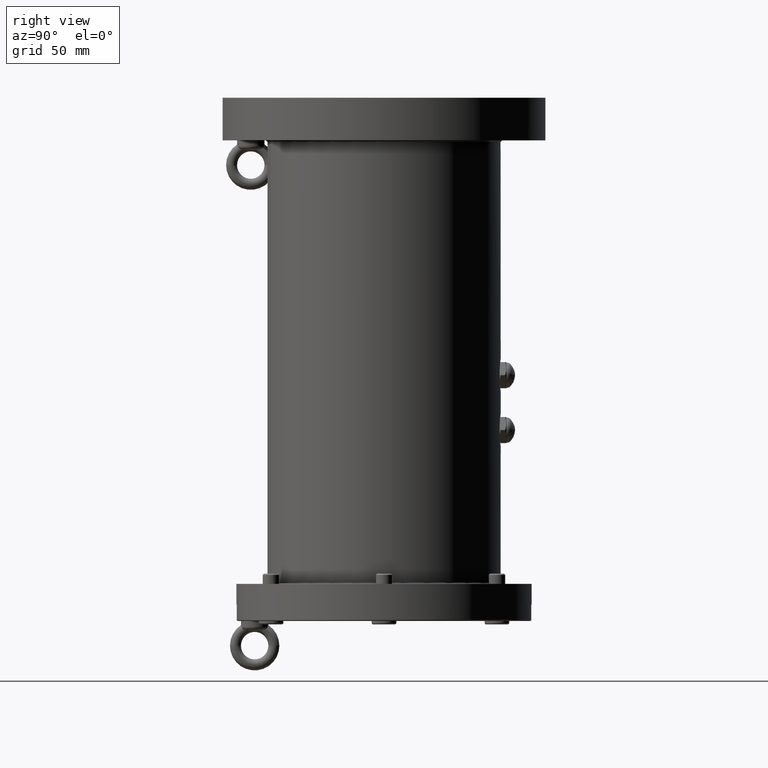
[diagram: clean part render]
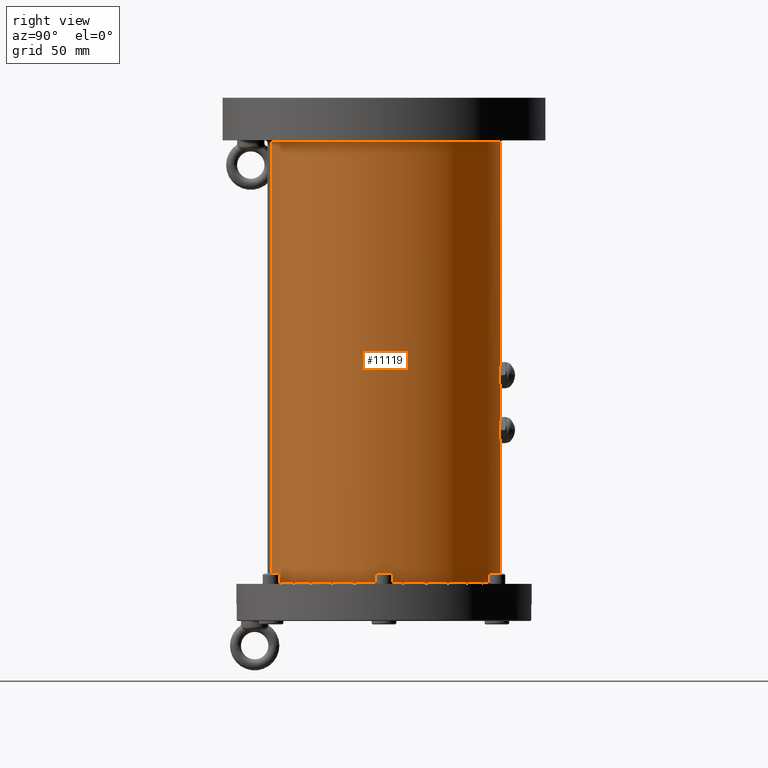
[diagram: same view with one face highlighted and labeled with its STEP entity id]
A machine part, right view. The second image highlights one B-rep face of the part: STEP entity #11119.
In plain terms, the highlighted cylindrical surface (partial cylindrical patch) has radius 85 mm, axis along (0, 0, -1).
Its self-contained STEP definition (entity closure, byte-faithful):
#14 = CARTESIAN_POINT ( 'NONE',  ( 9.044206544747794400, 84.51933773382572200, -228.0735759516371100 ) ) ;
#154 = CARTESIAN_POINT ( 'NONE',  ( 12.00000000000032000, 84.14867794564564500, -235.6081599164047000 ) ) ;
#301 = CARTESIAN_POINT ( 'NONE',  ( 9.539889462562088700, 84.46408613017567300, -228.6787327392241300 ) ) ;
#600 = CARTESIAN_POINT ( 'NONE',  ( -2.716766988785695800, 84.95744005834585300, -207.6949688949786200 ) ) ;
#750 = CARTESIAN_POINT ( 'NONE',  ( 9.043574513783143600, 84.51936035444008200, -203.9262503338350400 ) ) ;
#902 = CARTESIAN_POINT ( 'NONE',  ( -9.032457623247591300, 84.52055063493057200, -203.9388463214366100 ) ) ;
#1034 = CARTESIAN_POINT ( 'NONE',  ( 9.539328796728090900, 84.46416691641414300, -203.3226928016652000 ) ) ;
#1198 = CARTESIAN_POINT ( 'NONE',  ( 7.312926427400684700, 84.68538947666878900, -205.5224708189947800 ) ) ;
#1351 = CARTESIAN_POINT ( 'NONE',  ( -11.99999999999967800, 84.14867794564580100, -236.0000000000000000 ) ) ;
#1372 = CIRCLE ( 'NONE', #26003, 85.00000000000000000 ) ;
#1387 = CARTESIAN_POINT ( 'NONE',  ( 10.77006372919801100, 84.31512610298203500, -241.3065942958711800 ) ) ;
#1832 = CARTESIAN_POINT ( 'NONE',  ( 10.19592800352819000, 84.38656068261619200, -242.3402056817414200 ) ) ;
#1978 = CARTESIAN_POINT ( 'NONE',  ( -10.18859423492148900, 84.38744870150067400, -242.3520347736085500 ) ) ;
#2130 = CARTESIAN_POINT ( 'NONE',  ( -6.983962936282843300, 84.71323001081987100, -245.7661664604318900 ) ) ;
#2290 = VERTEX_POINT ( 'NONE', #1351 ) ;
#2415 = CARTESIAN_POINT ( 'NONE',  ( -9.529429831560792200, 84.46529328910463600, -243.3357453664512500 ) ) ;
#2476 = CARTESIAN_POINT ( 'NONE',  ( 10.19148729547827200, 84.38709273874185600, -189.6528590671458700 ) ) ;
#2614 = CARTESIAN_POINT ( 'NONE',  ( -5.310945533964949800, 84.83462816274818900, -185.2320931575498800 ) ) ;
#2760 = CARTESIAN_POINT ( 'NONE',  ( 0.3874350015440145600, 85.00002041852370400, -183.9998553687809400 ) ) ;
#2900 = CARTESIAN_POINT ( 'NONE',  ( -11.92198641215700600, 84.15990747472983500, -194.4255957995898400 ) ) ;
#3002 = EDGE_CURVE ( 'NONE', #42811, #40258, #11032, .T. ) ;
#3035 = CARTESIAN_POINT ( 'NONE',  ( -0.7882321558434973700, 84.99995881286028500, -184.0002917422595200 ) ) ;
#3232 = CARTESIAN_POINT ( 'NONE',  ( -11.99999999999967800, 84.14867794564580100, -236.0000000000000000 ) ) ;
#3245 = DIRECTION ( 'NONE',  ( -0.0000000000000000000, -0.0000000000000000000, -1.000000000000000000 ) ) ;
#3344 = CARTESIAN_POINT ( 'NONE',  ( 11.90309463227067300, 84.16244934853570200, -194.4274107133734000 ) ) ;
#3444 = CARTESIAN_POINT ( 'NONE',  ( 10.19148729547827200, 84.38709273874184200, -229.6528590671458400 ) ) ;
#3590 = CARTESIAN_POINT ( 'NONE',  ( 11.98085656346280100, 84.15141483169109900, -235.2152867434954300 ) ) ;
#3679 = CARTESIAN_POINT ( 'NONE',  ( -9.760501540203671700, 84.43802866477463500, -229.0081289687887800 ) ) ;
#3684 = CARTESIAN_POINT ( 'NONE',  ( -1.567579392149860200, 84.98907864495055300, -224.0766274336976100 ) ) ;
#3825 = CARTESIAN_POINT ( 'NONE',  ( -8.760010812684015500, 84.54785277514982100, -227.7893357789078300 ) ) ;
#4037 = CARTESIAN_POINT ( 'NONE',  ( -6.983962936282839700, 84.71323001081985600, -205.7661664604318000 ) ) ;
#4322 = CARTESIAN_POINT ( 'NONE',  ( 11.59640882552746900, 84.20532383403774200, -199.1108686624815200 ) ) ;
#4477 = CARTESIAN_POINT ( 'NONE',  ( 12.00000000000032300, 84.14867794564565900, -196.0000000000000000 ) ) ;
#4635 = CARTESIAN_POINT ( 'NONE',  ( 10.93719857709753600, 84.29353733322805900, -200.9528186831044500 ) ) ;
#4817 = CARTESIAN_POINT ( 'NONE',  ( 10.40007235699772000, 84.36156267792792100, -241.9993925293458400 ) ) ;
#5062 = CARTESIAN_POINT ( 'NONE',  ( -11.92201397404362600, 84.15990792060125600, -197.5782156996784500 ) ) ;
#5105 = CARTESIAN_POINT ( 'NONE',  ( 12.00000000000032300, 84.14867794564565900, -236.0000000000000000 ) ) ;
#5388 = DIRECTION ( 'NONE',  ( 0.0000000000000000000, 0.0000000000000000000, -1.000000000000000000 ) ) ;
#5397 = CARTESIAN_POINT ( 'NONE',  ( -0.7850806761552080500, 85.00007519297962200, -248.0005326170581300 ) ) ;
#5822 = CARTESIAN_POINT ( 'NONE',  ( -5.316192398897417300, 84.83670743509854600, -246.7868324921111600 ) ) ;
#5886 = CARTESIAN_POINT ( 'NONE',  ( 10.76514057232043000, 84.31575693812642700, -190.6833330459974100 ) ) ;
#6089 = EDGE_CURVE ( 'NONE', #39064, #39777, #35066, .T. ) ;
#6317 = CARTESIAN_POINT ( 'NONE',  ( -9.760501540203680500, 84.43802866477466300, -189.0081289687889000 ) ) ;
#6653 = CARTESIAN_POINT ( 'NONE',  ( -6.343323484628060200, 84.76361506703376800, -225.8059884971991400 ) ) ;
#7153 = CARTESIAN_POINT ( 'NONE',  ( 10.93531165406888000, 84.29378384862920400, -231.0428372348776200 ) ) ;
#7263 = CARTESIAN_POINT ( 'NONE',  ( 12.00000000000032300, 84.14867794564565900, -236.0000000000000000 ) ) ;
#7438 = CARTESIAN_POINT ( 'NONE',  ( -7.302476822687596700, 84.68628955460567900, -205.5304468885489100 ) ) ;
#7590 = CARTESIAN_POINT ( 'NONE',  ( 0.8012792761250384600, 84.99992403527144800, -207.9994619163863100 ) ) ;
#7740 = CARTESIAN_POINT ( 'NONE',  ( -10.18859423492148900, 84.38744870150064500, -202.3520347736084700 ) ) ;
#7808 = FACE_OUTER_BOUND ( 'NONE', #29012, .T. ) ;
#9324 = CARTESIAN_POINT ( 'NONE',  ( -3.867200613673145200, 84.91281579986430500, -184.6334211795388900 ) ) ;
#9472 = CARTESIAN_POINT ( 'NONE',  ( -8.760010812684019000, 84.54785277514983500, -187.7893357789078300 ) ) ;
#9625 = CARTESIAN_POINT ( 'NONE',  ( -11.59768029592348000, 84.20514919463163000, -192.8936821978159300 ) ) ;
#9773 = CARTESIAN_POINT ( 'NONE',  ( 6.008376185134151700, 84.78809109822999800, -185.6050811984187000 ) ) ;
#9909 = CARTESIAN_POINT ( 'NONE',  ( 1.568751044270822300, 84.98643661538770300, -224.0963920674824100 ) ) ;
#10017 = CARTESIAN_POINT ( 'NONE',  ( 10.39325043529473000, 84.36240551916640100, -229.9887152429077400 ) ) ;
#10098 = CARTESIAN_POINT ( 'NONE',  ( -5.310945533964952500, 84.83462816274817400, -225.2320931575499100 ) ) ;
#10460 = CARTESIAN_POINT ( 'NONE',  ( 3.863975070135972100, 84.91525109146560600, -224.6118936956986800 ) ) ;
#10761 = CARTESIAN_POINT ( 'NONE',  ( 6.996275777822544000, 84.71221101124646700, -205.7573257656301300 ) ) ;
#11032 = B_SPLINE_CURVE_WITH_KNOTS ( 'NONE', 3,
 ( #29990, #16084, #2900, #22980, #9625, #12656, #43752, #12923, #44051, #6317, #19688, #43605, #9472, #36838, #40295, #40445, #36987, #2614, #19981, #23273, #9324, #27019, #36558, #33542, #3035, #2760, #30412, #13207, #33121, #30277, #43903, #40008, #23417, #9773, #19549, #37134, #16681, #40579, #20136, #2476, #26424, #5886, #29859, #33265, #36706, #34152, #3344, #37736, #24143, #17421 ),
 .UNSPECIFIED., .F., .F.,
 ( 4, 2, 2, 2, 2, 2, 2, 2, 2, 2, 2, 2, 2, 2, 2, 2, 2, 2, 2, 2, 2, 2, 2, 2, 4 ),
 ( 0.0000000000000000000, 0.002347772483026787100, 0.003521658724540181800, 0.004695544966053576800, 0.007043317449080367800, 0.008217203690593798500, 0.009391089932107230000, 0.01173886241513409600, 0.01291274865664752800, 0.01408663489816096300, 0.01526052113967439400, 0.01643440738118782900, 0.01878217986421469900, 0.01995606610572812900, 0.02112995234724155900, 0.02347772483026842500, 0.02465161107178184500, 0.02582549731329526100, 0.02817326979632209900, 0.03052104227934893500, 0.03169492852086239200, 0.03286881476237583900, 0.03521658724540267100, 0.03639047348691608300, 0.03756435972842949600 ),
 .UNSPECIFIED. ) ;
#11049 = CARTESIAN_POINT ( 'NONE',  ( -5.316192398897420000, 84.83670743509853200, -206.7868324921111000 ) ) ;
#11104 = B_SPLINE_CURVE_WITH_KNOTS ( 'NONE', 3,
 ( #3232, #14002, #40923, #44228, #37915, #13693, #41067, #20601, #20742, #3679, #41369, #20449, #3825, #23880, #27803, #6653, #30593, #10098, #24778, #42553, #16217, #35924, #12746, #3684, #28103, #42414, #16079, #9909, #41276, #27861, #10460, #17369, #23790, #24090, #27711, #30502, #40978, #14, #301, #3444, #10017, #40835, #7153, #13905, #17525, #13602, #37378, #3590, #154, #27556 ),
 .UNSPECIFIED., .F., .F.,
 ( 4, 2, 2, 2, 2, 2, 2, 2, 2, 2, 2, 2, 2, 2, 2, 2, 2, 2, 2, 2, 2, 2, 2, 2, 4 ),
 ( 0.0000000000000000000, 0.002347772483026784500, 0.003521658724540177400, 0.004695544966053570800, 0.007043317449080356600, 0.008217203690593788100, 0.009391089932107217800, 0.01173886241513408400, 0.01291274865664751800, 0.01408663489816095100, 0.01526052113967438700, 0.01643440738118781900, 0.01878217986421468900, 0.01995606610572812200, 0.02112995234724155500, 0.02347772483026842500, 0.02465161107178184100, 0.02582549731329526100, 0.02817326979632209200, 0.03052104227934893100, 0.03169492852086238500, 0.03286881476237583200, 0.03521658724540265700, 0.03639047348691607000, 0.03756435972842947500 ),
 .UNSPECIFIED. ) ;
#11119 = ADVANCED_FACE ( 'NONE', ( #26068, #41009, #7808 ), #13705, .T. ) ;
#11196 = CARTESIAN_POINT ( 'NONE',  ( -10.39249425398408500, 84.36249690369291400, -202.0124691118503800 ) ) ;
#11348 = CARTESIAN_POINT ( 'NONE',  ( 11.69303107457282700, 84.19191806899442600, -198.7256521143109200 ) ) ;
#11987 = CARTESIAN_POINT ( 'NONE',  ( 11.69303107457283100, 84.19191806899441100, -238.7256521143109500 ) ) ;
#12330 = EDGE_CURVE ( 'NONE', #41571, #39777, #44158, .T. ) ;
#12451 = CARTESIAN_POINT ( 'NONE',  ( -1.565247284193284300, 84.98905681024153600, -247.9231909421439800 ) ) ;
#12590 = CARTESIAN_POINT ( 'NONE',  ( -10.39249425398408800, 84.36249690369292900, -242.0124691118504400 ) ) ;
#12656 = CARTESIAN_POINT ( 'NONE',  ( -11.36880756774511500, 84.23635529641703100, -192.1392211896822500 ) ) ;
#12729 = CARTESIAN_POINT ( 'NONE',  ( -10.76279905243599600, 84.31605408937004100, -241.3212665970546900 ) ) ;
#12746 = CARTESIAN_POINT ( 'NONE',  ( -2.729801436212321100, 84.95703845259627900, -224.3079422792547700 ) ) ;
#12923 = CARTESIAN_POINT ( 'NONE',  ( -10.78245963808059200, 84.31388364077544400, -190.6748617810330300 ) ) ;
#13207 = CARTESIAN_POINT ( 'NONE',  ( 1.568751044270831500, 84.98643661538771700, -184.0963920674823800 ) ) ;
#13546 = ORIENTED_EDGE ( 'NONE', *, *, #6089, .F. ) ;
#13602 = CARTESIAN_POINT ( 'NONE',  ( 11.84456904261687900, 84.17073249480111500, -234.0352359228374200 ) ) ;
#13693 = CARTESIAN_POINT ( 'NONE',  ( -11.36880756774512100, 84.23635529641707400, -232.1392211896822700 ) ) ;
#13705 = CYLINDRICAL_SURFACE ( 'NONE', #39806, 85.00000000000000000 ) ;
#13905 = CARTESIAN_POINT ( 'NONE',  ( 11.38675581780182000, 84.23439878048570500, -232.1322090863315000 ) ) ;
#14002 = CARTESIAN_POINT ( 'NONE',  ( -11.99999999999967800, 84.14867794564581500, -235.2060630651847900 ) ) ;
#14199 = CARTESIAN_POINT ( 'NONE',  ( -1.565247284193293200, 84.98905681024153600, -207.9231909421440000 ) ) ;
#14655 = CARTESIAN_POINT ( 'NONE',  ( 4.241705715577453800, 84.89487792328137100, -207.2322170925742700 ) ) ;
#14796 = CARTESIAN_POINT ( 'NONE',  ( 10.19592800352818800, 84.38656068261616400, -202.3402056817414200 ) ) ;
#14992 = CARTESIAN_POINT ( 'NONE',  ( 11.92401084053163100, 84.15962298432469900, -237.5628775100936100 ) ) ;
#15069 = DIRECTION ( 'NONE',  ( 0.0000000000000000000, 0.0000000000000000000, 1.000000000000000000 ) ) ;
#15241 = CARTESIAN_POINT ( 'NONE',  ( -10.93026980056637900, 84.29443687098752500, -200.9680788320513900 ) ) ;
#15265 = LINE ( 'NONE', #19938, #40920 ) ;
#15569 = CARTESIAN_POINT ( 'NONE',  ( -9.032457623247568200, 84.52055063493055800, -243.9388463214365900 ) ) ;
#15732 = CARTESIAN_POINT ( 'NONE',  ( -10.93026980056637500, 84.29443687098751100, -240.9680788320513600 ) ) ;
#15873 = CARTESIAN_POINT ( 'NONE',  ( -7.912574702108162100, 84.63146558967272900, -245.0303237608016800 ) ) ;
#16015 = CARTESIAN_POINT ( 'NONE',  ( -4.226973463295514900, 84.89561179974644700, -247.2377537590629700 ) ) ;
#16079 = CARTESIAN_POINT ( 'NONE',  ( 0.7804395639672502300, 84.99733114932026000, -224.0188574945044900 ) ) ;
#16084 = CARTESIAN_POINT ( 'NONE',  ( -11.99999999999967700, 84.14867794564580100, -195.2060630651847900 ) ) ;
#16217 = CARTESIAN_POINT ( 'NONE',  ( -3.867200613673166000, 84.91281579986433300, -224.6334211795388900 ) ) ;
#16681 = CARTESIAN_POINT ( 'NONE',  ( 7.925326605833289400, 84.63158583637333300, -186.9548317644504900 ) ) ;
#16773 = CARTESIAN_POINT ( 'NONE',  ( 21.99961883371404500, -82.10369523457086400, -351.0000000000000000 ) ) ;
#17369 = CARTESIAN_POINT ( 'NONE',  ( 4.954573678465531600, 84.85625930054884200, -225.0635007063579600 ) ) ;
#17421 = CARTESIAN_POINT ( 'NONE',  ( 12.00000000000032300, 84.14867794564565900, -196.0000000000000000 ) ) ;
#17525 = CARTESIAN_POINT ( 'NONE',  ( 11.61395806218078300, 84.20296952125058000, -232.8803152616346800 ) ) ;
#17670 = CARTESIAN_POINT ( 'NONE',  ( -4.226973463295518500, 84.89561179974646200, -207.2377537590630000 ) ) ;
#18129 = CARTESIAN_POINT ( 'NONE',  ( -7.912574702108165600, 84.63146558967272900, -205.0303237608015600 ) ) ;
#18425 = CARTESIAN_POINT ( 'NONE',  ( -11.36275192046322900, 84.23717274169563000, -199.8784431444513500 ) ) ;
#18461 = CARTESIAN_POINT ( 'NONE',  ( 10.93719857709754900, 84.29353733322808800, -240.9528186831044300 ) ) ;
#18604 = CARTESIAN_POINT ( 'NONE',  ( 0.0000000000000000000, 0.0000000000000000000, -18.00000000000000000 ) ) ;
#18610 = CARTESIAN_POINT ( 'NONE',  ( 7.312926427400657100, 84.68538947666877400, -245.5224708189947200 ) ) ;
#19047 = CARTESIAN_POINT ( 'NONE',  ( -11.99999999999968200, 84.14867794564582900, -236.7937437325308800 ) ) ;
#19188 = CARTESIAN_POINT ( 'NONE',  ( 3.113509701430350300, 84.94379456835221700, -247.5957368511952000 ) ) ;
#19513 = ORIENTED_EDGE ( 'NONE', *, *, #34517, .F. ) ;
#19549 = CARTESIAN_POINT ( 'NONE',  ( 6.344150428599635700, 84.76354102493668600, -185.8066507698287400 ) ) ;
#19628 = CARTESIAN_POINT ( 'NONE',  ( -11.92201397404362400, 84.15990792060124200, -237.5782156996784200 ) ) ;
#19688 = CARTESIAN_POINT ( 'NONE',  ( -9.524848569316903400, 84.46502708739349400, -188.6902002795511100 ) ) ;
#19711 = ORIENTED_EDGE ( 'NONE', *, *, #34663, .F. ) ;
#19938 = CARTESIAN_POINT ( 'NONE',  ( 21.99961883371404500, -82.10369523457086400, -18.00000000000000000 ) ) ;
#19981 = CARTESIAN_POINT ( 'NONE',  ( -4.957416244701631700, 84.85608216997584900, -185.0648868475599900 ) ) ;
#20014 = EDGE_CURVE ( 'NONE', #27588, #41571, #15265, .T. ) ;
#20136 = CARTESIAN_POINT ( 'NONE',  ( 9.539889462562095800, 84.46408613017568700, -188.6787327392241600 ) ) ;
#20431 = CARTESIAN_POINT ( 'NONE',  ( -21.99961883371403500, 82.10369523457086400, -18.00000000000000000 ) ) ;
#20449 = CARTESIAN_POINT ( 'NONE',  ( -9.023711074485580900, 84.52003419063873900, -228.0798642268141000 ) ) ;
#20601 = CARTESIAN_POINT ( 'NONE',  ( -10.78245963808059700, 84.31388364077545800, -230.6748617810330600 ) ) ;
#20742 = CARTESIAN_POINT ( 'NONE',  ( -10.41373459095599300, 84.36081099839908900, -229.9859551712034700 ) ) ;
#21286 = CARTESIAN_POINT ( 'NONE',  ( 21.99961883371404500, -82.10369523457086400, -20.99999999999790000 ) ) ;
#21392 = CARTESIAN_POINT ( 'NONE',  ( 8.214580332450623200, 84.60258742283967600, -204.7563457587604000 ) ) ;
#21972 = CARTESIAN_POINT ( 'NONE',  ( 0.0000000000000000000, 0.0000000000000000000, -351.0000000000000000 ) ) ;
#22035 = CARTESIAN_POINT ( 'NONE',  ( 4.241705715577479600, 84.89487792328135600, -247.2322170925742200 ) ) ;
#22170 = DIRECTION ( 'NONE',  ( -0.2588190451025180700, 0.9659258262890689800, 0.0000000000000000000 ) ) ;
#22324 = CARTESIAN_POINT ( 'NONE',  ( 11.59640882552747100, 84.20532383403775600, -239.1108686624815200 ) ) ;
#22980 = CARTESIAN_POINT ( 'NONE',  ( -11.69287327316511800, 84.19193940728165200, -193.2742263910631100 ) ) ;
#23064 = CARTESIAN_POINT ( 'NONE',  ( -2.716766988785688700, 84.95744005834585300, -247.6949688949785600 ) ) ;
#23273 = CARTESIAN_POINT ( 'NONE',  ( -4.235543711849959300, 84.89517551973095500, -184.7655509727932500 ) ) ;
#23417 = CARTESIAN_POINT ( 'NONE',  ( 5.314287422605327800, 84.83442299947455500, -185.2336974562529400 ) ) ;
#23790 = CARTESIAN_POINT ( 'NONE',  ( 5.314287422605325200, 84.83442299947456900, -225.2336974562529100 ) ) ;
#23880 = CARTESIAN_POINT ( 'NONE',  ( -7.930635171664887300, 84.63104524393493500, -226.9602980506311100 ) ) ;
#24090 = CARTESIAN_POINT ( 'NONE',  ( 6.008376185134149100, 84.78809109823004100, -225.6050811984186700 ) ) ;
#24143 = CARTESIAN_POINT ( 'NONE',  ( 12.00000000000032500, 84.14867794564565900, -195.6081599164047900 ) ) ;
#24274 = ORIENTED_EDGE ( 'NONE', *, *, #31530, .F. ) ;
#24532 = CARTESIAN_POINT ( 'NONE',  ( 6.019948394790763000, 84.78907062833749800, -206.4102519060751600 ) ) ;
#24778 = CARTESIAN_POINT ( 'NONE',  ( -4.957416244701636100, 84.85608216997584900, -225.0648868475599600 ) ) ;
#24987 = CARTESIAN_POINT ( 'NONE',  ( 7.923918891074055000, 84.63040584302633800, -205.0204131190795900 ) ) ;
#25118 = DIRECTION ( 'NONE',  ( 0.2588190451025180700, -0.9659258262890689800, 0.0000000000000000000 ) ) ;
#25183 = CARTESIAN_POINT ( 'NONE',  ( 7.923918891074034600, 84.63040584302632400, -245.0204131190795400 ) ) ;
#25339 = CARTESIAN_POINT ( 'NONE',  ( -11.99999999999967800, 84.14867794564580100, -196.0000000000000000 ) ) ;
#25582 = CARTESIAN_POINT ( 'NONE',  ( -11.68940015886095900, 84.19242277976306400, -198.7412076579523400 ) ) ;
#25683 = B_SPLINE_CURVE_WITH_KNOTS ( 'NONE', 3,
 ( #5105, #35467, #14992, #11987, #22324, #25773, #35905, #18461, #1387, #4817, #1832, #35319, #32175, #39065, #25183, #18610, #28924, #42502, #39212, #22035, #32324, #19188, #33063, #26363, #25931, #5397, #12451, #23064, #26510, #32920, #16015, #5822, #36200, #2130, #39495, #15873, #29511, #15569, #2415, #1978, #12590, #12729, #15732, #29932, #29361, #32613, #36646, #19628, #19047, #29798 ),
 .UNSPECIFIED., .F., .F.,
 ( 4, 2, 2, 2, 2, 2, 2, 2, 2, 2, 2, 2, 2, 2, 2, 2, 2, 2, 2, 2, 2, 2, 2, 2, 4 ),
 ( 0.03756435972842947500, 0.03991156088773151200, 0.04108516146738256500, 0.04225876204703362500, 0.04343236262668468500, 0.04460596320633573900, 0.04695316436563785900, 0.04812676494528894700, 0.04930036552494002800, 0.05164756668424224500, 0.05282116726389336800, 0.05399476784354449000, 0.05634196900284672800, 0.05868917016214897400, 0.05986277074180009600, 0.06103637132145121900, 0.06338357248075346400, 0.06455717306040458000, 0.06573077364005569500, 0.06807797479935788500, 0.06925157537900897300, 0.07042517595866007500, 0.07159877653831114900, 0.07277237711796225000, 0.07511957827726444000 ),
 .UNSPECIFIED. ) ;
#25773 = CARTESIAN_POINT ( 'NONE',  ( 11.36821874006645800, 84.23643429254309500, -239.8623573322495300 ) ) ;
#25931 = CARTESIAN_POINT ( 'NONE',  ( 0.8012792761250410200, 84.99992403527142000, -247.9994619163862000 ) ) ;
#25962 = CARTESIAN_POINT ( 'NONE',  ( -21.99961883371403500, 82.10369523457086400, -20.99999999999790000 ) ) ;
#26003 = AXIS2_PLACEMENT_3D ( 'NONE', #30322, #3245, #30759 ) ;
#26068 = FACE_BOUND ( 'NONE', #36165, .T. ) ;
#26363 = CARTESIAN_POINT ( 'NONE',  ( 1.582771373249888900, 84.98872658031915300, -247.9208496293759700 ) ) ;
#26412 = EDGE_CURVE ( 'NONE', #39064, #27588, #1372, .T. ) ;
#26424 = CARTESIAN_POINT ( 'NONE',  ( 10.39325043529473400, 84.36240551916641600, -189.9887152429077700 ) ) ;
#26510 = CARTESIAN_POINT ( 'NONE',  ( -3.097462375257482100, 84.94438449209556600, -247.6000543357854200 ) ) ;
#26525 = DIRECTION ( 'NONE',  ( 0.0000000000000000000, 0.0000000000000000000, -1.000000000000000000 ) ) ;
#26659 = AXIS2_PLACEMENT_3D ( 'NONE', #21972, #15069, #25118 ) ;
#27019 = CARTESIAN_POINT ( 'NONE',  ( -3.115432359712961400, 84.94372024381868900, -184.4048097954279500 ) ) ;
#27556 = CARTESIAN_POINT ( 'NONE',  ( 12.00000000000032300, 84.14867794564565900, -236.0000000000000000 ) ) ;
#27588 = VERTEX_POINT ( 'NONE', #21286 ) ;
#27711 = CARTESIAN_POINT ( 'NONE',  ( 6.344150428599634900, 84.76354102493670000, -225.8066507698288200 ) ) ;
#27803 = CARTESIAN_POINT ( 'NONE',  ( -7.327056417507983500, 84.68616777553637600, -226.4639244102122300 ) ) ;
#27861 = CARTESIAN_POINT ( 'NONE',  ( 3.115432453057239900, 84.94637909702987600, -224.3849056594937100 ) ) ;
#28009 = CARTESIAN_POINT ( 'NONE',  ( -6.005299476553667600, 84.79012139891457900, -206.4187984292749400 ) ) ;
#28103 = CARTESIAN_POINT ( 'NONE',  ( -0.7882321558434992600, 84.99995881286028500, -224.0002917422595500 ) ) ;
#28152 = CARTESIAN_POINT ( 'NONE',  ( -3.852422933032304500, 84.91349461335430200, -207.3716476952267800 ) ) ;
#28298 = CARTESIAN_POINT ( 'NONE',  ( 1.582771373249882700, 84.98872658031915300, -207.9208496293759900 ) ) ;
#28454 = CARTESIAN_POINT ( 'NONE',  ( -8.203108888253124700, 84.60370084786106300, -204.7670774762885900 ) ) ;
#28924 = CARTESIAN_POINT ( 'NONE',  ( 6.996275777822549300, 84.71221101124643800, -245.7573257656300700 ) ) ;
#29012 = EDGE_LOOP ( 'NONE', ( #34451, #34146, #36010, #13546 ) ) ;
#29361 = CARTESIAN_POINT ( 'NONE',  ( -11.36275192046322100, 84.23717274169565900, -239.8784431444514400 ) ) ;
#29511 = CARTESIAN_POINT ( 'NONE',  ( -8.203108888253096300, 84.60370084786106300, -244.7670774762885900 ) ) ;
#29798 = CARTESIAN_POINT ( 'NONE',  ( -11.99999999999967800, 84.14867794564580100, -236.0000000000000000 ) ) ;
#29859 = CARTESIAN_POINT ( 'NONE',  ( 10.93531165406887800, 84.29378384862916100, -191.0428372348776000 ) ) ;
#29932 = CARTESIAN_POINT ( 'NONE',  ( -11.23024598168874600, 84.25499665005533200, -240.2466669736880900 ) ) ;
#29990 = CARTESIAN_POINT ( 'NONE',  ( -11.99999999999967800, 84.14867794564580100, -196.0000000000000000 ) ) ;
#30277 = CARTESIAN_POINT ( 'NONE',  ( 3.115432453057240400, 84.94637909702987600, -184.3849056594936800 ) ) ;
#30295 = DIRECTION ( 'NONE',  ( 0.0000000000000000000, 0.0000000000000000000, -1.000000000000000000 ) ) ;
#30322 = CARTESIAN_POINT ( 'NONE',  ( 0.0000000000000000000, 0.0000000000000000000, -20.99999999999790000 ) ) ;
#30412 = CARTESIAN_POINT ( 'NONE',  ( 0.7804395639672578900, 84.99733114932026000, -184.0188574945044600 ) ) ;
#30502 = CARTESIAN_POINT ( 'NONE',  ( 7.318473749701778000, 84.68686125345665500, -226.4579669498241400 ) ) ;
#30593 = CARTESIAN_POINT ( 'NONE',  ( -6.003030015144668500, 84.78846565785796900, -225.6020391003957600 ) ) ;
#30759 = DIRECTION ( 'NONE',  ( 0.2588190451025180700, -0.9659258262890689800, 0.0000000000000000000 ) ) ;
#31264 = CARTESIAN_POINT ( 'NONE',  ( 10.77006372919802000, 84.31512610298202000, -201.3065942958711800 ) ) ;
#31410 = CARTESIAN_POINT ( 'NONE',  ( -0.7850806761552111500, 85.00007519297963700, -208.0005326170581600 ) ) ;
#31530 = EDGE_CURVE ( 'NONE', #35236, #2290, #25683, .T. ) ;
#31547 = CARTESIAN_POINT ( 'NONE',  ( -9.529429831560797500, 84.46529328910462200, -203.3357453664512500 ) ) ;
#32158 = CARTESIAN_POINT ( 'NONE',  ( 12.00000000000032300, 84.14867794564565900, -196.0000000000000000 ) ) ;
#32175 = CARTESIAN_POINT ( 'NONE',  ( 9.043574513783127600, 84.51936035444006700, -243.9262503338350100 ) ) ;
#32282 = CARTESIAN_POINT ( 'NONE',  ( -11.59217163077034700, 84.20590810390344000, -199.1266610487061300 ) ) ;
#32324 = CARTESIAN_POINT ( 'NONE',  ( 3.867004513459136200, 84.91282856214489500, -247.3666763777260100 ) ) ;
#32613 = CARTESIAN_POINT ( 'NONE',  ( -11.59217163077034300, 84.20590810390344000, -239.1266610487061000 ) ) ;
#32920 = CARTESIAN_POINT ( 'NONE',  ( -3.852422933032305000, 84.91349461335427400, -247.3716476952267000 ) ) ;
#33063 = CARTESIAN_POINT ( 'NONE',  ( 2.733341746283970000, 84.95690699195139900, -247.6910991003654200 ) ) ;
#33121 = CARTESIAN_POINT ( 'NONE',  ( 1.960540234544192000, 84.97825952710022100, -184.1547323387844100 ) ) ;
#33265 = CARTESIAN_POINT ( 'NONE',  ( 11.38675581780181800, 84.23439878048566200, -192.1322090863315300 ) ) ;
#33542 = CARTESIAN_POINT ( 'NONE',  ( -1.567579392149867100, 84.98907864495055300, -184.0766274336975800 ) ) ;
#34146 = ORIENTED_EDGE ( 'NONE', *, *, #20014, .T. ) ;
#34152 = CARTESIAN_POINT ( 'NONE',  ( 11.84456904261687900, 84.17073249480112900, -194.0352359228375000 ) ) ;
#34451 = ORIENTED_EDGE ( 'NONE', *, *, #26412, .T. ) ;
#34517 = EDGE_CURVE ( 'NONE', #2290, #35236, #11104, .T. ) ;
#34663 = EDGE_CURVE ( 'NONE', #40258, #42811, #40742, .T. ) ;
#34689 = CARTESIAN_POINT ( 'NONE',  ( 3.113509701430345000, 84.94379456835220300, -207.5957368511952000 ) ) ;
#34832 = CARTESIAN_POINT ( 'NONE',  ( 2.733341746283959800, 84.95690699195139900, -207.6910991003654800 ) ) ;
#35066 = LINE ( 'NONE', #20431, #38821 ) ;
#35131 = CARTESIAN_POINT ( 'NONE',  ( -10.76279905243599600, 84.31605408937005600, -201.3212665970547200 ) ) ;
#35236 = VERTEX_POINT ( 'NONE', #7263 ) ;
#35272 = CARTESIAN_POINT ( 'NONE',  ( 11.23627613746633000, 84.25419186856986200, -200.2307002003424300 ) ) ;
#35319 = CARTESIAN_POINT ( 'NONE',  ( 9.539328796728090900, 84.46416691641414300, -243.3226928016652300 ) ) ;
#35467 = CARTESIAN_POINT ( 'NONE',  ( 12.00000000000032200, 84.14867794564564500, -236.7834894608612300 ) ) ;
#35905 = CARTESIAN_POINT ( 'NONE',  ( 11.23627613746633700, 84.25419186856986200, -240.2307002003423700 ) ) ;
#35924 = CARTESIAN_POINT ( 'NONE',  ( -3.115432359712983200, 84.94372024381866000, -224.4048097954279200 ) ) ;
#36010 = ORIENTED_EDGE ( 'NONE', *, *, #12330, .T. ) ;
#36165 = EDGE_LOOP ( 'NONE', ( #39972, #19711 ) ) ;
#36200 = CARTESIAN_POINT ( 'NONE',  ( -6.005299476553669400, 84.79012139891459300, -246.4187984292750300 ) ) ;
#36558 = CARTESIAN_POINT ( 'NONE',  ( -2.729801436212330800, 84.95703845259626500, -184.3079422792548000 ) ) ;
#36646 = CARTESIAN_POINT ( 'NONE',  ( -11.68940015886095900, 84.19242277976307800, -238.7412076579523400 ) ) ;
#36706 = CARTESIAN_POINT ( 'NONE',  ( 11.61395806218078000, 84.20296952125055200, -192.8803152616347100 ) ) ;
#36838 = CARTESIAN_POINT ( 'NONE',  ( -7.930635171664890800, 84.63104524393493500, -186.9602980506312000 ) ) ;
#36987 = CARTESIAN_POINT ( 'NONE',  ( -6.003030015144666700, 84.78846565785795500, -185.6020391003957900 ) ) ;
#37134 = CARTESIAN_POINT ( 'NONE',  ( 7.318473749701783300, 84.68686125345664100, -186.4579669498241100 ) ) ;
#37378 = CARTESIAN_POINT ( 'NONE',  ( 11.90309463227067100, 84.16244934853570200, -234.4274107133734000 ) ) ;
#37736 = CARTESIAN_POINT ( 'NONE',  ( 11.98085656346279700, 84.15141483169108500, -195.2152867434953700 ) ) ;
#37915 = CARTESIAN_POINT ( 'NONE',  ( -11.59768029592348200, 84.20514919463164500, -232.8936821978159600 ) ) ;
#38120 = CARTESIAN_POINT ( 'NONE',  ( 10.40007235699773200, 84.36156267792790700, -201.9993925293457300 ) ) ;
#38425 = CARTESIAN_POINT ( 'NONE',  ( 5.331562753200239900, 84.83574658452840800, -206.7793094109873700 ) ) ;
#38579 = CARTESIAN_POINT ( 'NONE',  ( 3.867004513459127800, 84.91282856214488100, -207.3666763777260100 ) ) ;
#38736 = CARTESIAN_POINT ( 'NONE',  ( 11.36821874006645800, 84.23643429254310900, -199.8623573322495600 ) ) ;
#38821 = VECTOR ( 'NONE', #30295, 1000.000000000000000 ) ;
#38883 = CARTESIAN_POINT ( 'NONE',  ( -11.23024598168874500, 84.25499665005531800, -200.2466669736880900 ) ) ;
#39064 = VERTEX_POINT ( 'NONE', #25962 ) ;
#39065 = CARTESIAN_POINT ( 'NONE',  ( 8.214580332450607300, 84.60258742283966200, -244.7563457587604300 ) ) ;
#39166 = CARTESIAN_POINT ( 'NONE',  ( -11.99999999999967700, 84.14867794564580100, -196.7937437325309100 ) ) ;
#39212 = CARTESIAN_POINT ( 'NONE',  ( 5.331562753200264700, 84.83574658452840800, -246.7793094109873700 ) ) ;
#39495 = CARTESIAN_POINT ( 'NONE',  ( -7.302476822687593100, 84.68628955460567900, -245.5304468885488800 ) ) ;
#39777 = VERTEX_POINT ( 'NONE', #42096 ) ;
#39806 = AXIS2_PLACEMENT_3D ( 'NONE', #18604, #5388, #22170 ) ;
#39972 = ORIENTED_EDGE ( 'NONE', *, *, #3002, .F. ) ;
#40008 = CARTESIAN_POINT ( 'NONE',  ( 4.954573678465538800, 84.85625930054881400, -185.0635007063579300 ) ) ;
#40258 = VERTEX_POINT ( 'NONE', #32158 ) ;
#40295 = CARTESIAN_POINT ( 'NONE',  ( -7.327056417507985300, 84.68616777553637600, -186.4639244102122600 ) ) ;
#40445 = CARTESIAN_POINT ( 'NONE',  ( -6.343323484628061100, 84.76361506703378300, -185.8059884971991400 ) ) ;
#40579 = CARTESIAN_POINT ( 'NONE',  ( 9.044206544747787300, 84.51933773382575100, -188.0735759516372200 ) ) ;
#40742 = B_SPLINE_CURVE_WITH_KNOTS ( 'NONE', 3,
 ( #4477, #41585, #41876, #11348, #4322, #38736, #35272, #4635, #31264, #38120, #14796, #1034, #750, #21392, #24987, #1198, #10761, #24532, #38425, #14655, #38579, #34689, #34832, #28298, #7590, #31410, #14199, #600, #41718, #28152, #17670, #11049, #28009, #4037, #7438, #18129, #28454, #902, #31547, #7740, #11196, #35131, #15241, #38883, #18425, #32282, #25582, #5062, #39166, #42321 ),
 .UNSPECIFIED., .F., .F.,
 ( 4, 2, 2, 2, 2, 2, 2, 2, 2, 2, 2, 2, 2, 2, 2, 2, 2, 2, 2, 2, 2, 2, 2, 2, 4 ),
 ( 0.03756435972842949600, 0.03991156088773179000, 0.04108516146738289100, 0.04225876204703400000, 0.04343236262668510200, 0.04460596320633621000, 0.04695316436563841400, 0.04812676494528949500, 0.04930036552494057600, 0.05164756668424277900, 0.05282116726389386000, 0.05399476784354494800, 0.05634196900284711700, 0.05868917016214928600, 0.05986277074180037400, 0.06103637132145146200, 0.06338357248075363000, 0.06455717306040471800, 0.06573077364005580600, 0.06807797479935798200, 0.06925157537900907000, 0.07042517595866015800, 0.07159877653831124600, 0.07277237711796233400, 0.07511957827726450900 ),
 .UNSPECIFIED. ) ;
#40827 = EDGE_LOOP ( 'NONE', ( #19513, #24274 ) ) ;
#40835 = CARTESIAN_POINT ( 'NONE',  ( 10.76514057232043300, 84.31575693812641200, -230.6833330459972700 ) ) ;
#40920 = VECTOR ( 'NONE', #26525, 1000.000000000000000 ) ;
#40923 = CARTESIAN_POINT ( 'NONE',  ( -11.92198641215700200, 84.15990747472982000, -234.4255957995897000 ) ) ;
#40978 = CARTESIAN_POINT ( 'NONE',  ( 7.925326605833298300, 84.63158583637334700, -226.9548317644504900 ) ) ;
#41009 = FACE_BOUND ( 'NONE', #40827, .T. ) ;
#41067 = CARTESIAN_POINT ( 'NONE',  ( -11.23455256188263200, 84.25442380874470400, -231.7644997982793900 ) ) ;
#41276 = CARTESIAN_POINT ( 'NONE',  ( 1.960540234544191100, 84.97825952710024900, -224.1547323387844400 ) ) ;
#41369 = CARTESIAN_POINT ( 'NONE',  ( -9.524848569316903400, 84.46502708739348000, -228.6902002795511100 ) ) ;
#41571 = VERTEX_POINT ( 'NONE', #16773 ) ;
#41585 = CARTESIAN_POINT ( 'NONE',  ( 12.00000000000032700, 84.14867794564567300, -196.7834894608613200 ) ) ;
#41718 = CARTESIAN_POINT ( 'NONE',  ( -3.097462375257479000, 84.94438449209555100, -207.6000543357853900 ) ) ;
#41876 = CARTESIAN_POINT ( 'NONE',  ( 11.92401084053162700, 84.15962298432469900, -197.5628775100937000 ) ) ;
#42096 = CARTESIAN_POINT ( 'NONE',  ( -21.99961883371403500, 82.10369523457086400, -351.0000000000000000 ) ) ;
#42321 = CARTESIAN_POINT ( 'NONE',  ( -11.99999999999967800, 84.14867794564580100, -196.0000000000000000 ) ) ;
#42414 = CARTESIAN_POINT ( 'NONE',  ( 0.3874350015440096200, 85.00002041852367500, -223.9998553687809100 ) ) ;
#42502 = CARTESIAN_POINT ( 'NONE',  ( 6.019948394790765700, 84.78907062833752700, -246.4102519060751900 ) ) ;
#42553 = CARTESIAN_POINT ( 'NONE',  ( -4.235543711849968100, 84.89517551973098400, -224.7655509727932500 ) ) ;
#42811 = VERTEX_POINT ( 'NONE', #25339 ) ;
#43605 = CARTESIAN_POINT ( 'NONE',  ( -9.023711074485577300, 84.52003419063871100, -188.0798642268140700 ) ) ;
#43752 = CARTESIAN_POINT ( 'NONE',  ( -11.23455256188262800, 84.25442380874466200, -191.7644997982793000 ) ) ;
#43903 = CARTESIAN_POINT ( 'NONE',  ( 3.863975070135982300, 84.91525109146562000, -184.6118936956987100 ) ) ;
#44051 = CARTESIAN_POINT ( 'NONE',  ( -10.41373459095599900, 84.36081099839908900, -189.9859551712034400 ) ) ;
#44158 = CIRCLE ( 'NONE', #26659, 85.00000000000000000 ) ;
#44228 = CARTESIAN_POINT ( 'NONE',  ( -11.69287327316512100, 84.19193940728169400, -233.2742263910631900 ) ) ;